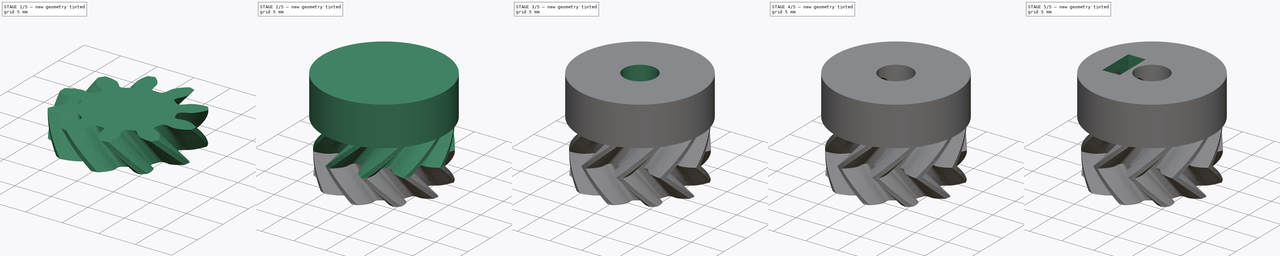
[diagram: build sequence overview — one tinted view per stage of 5, left to right]
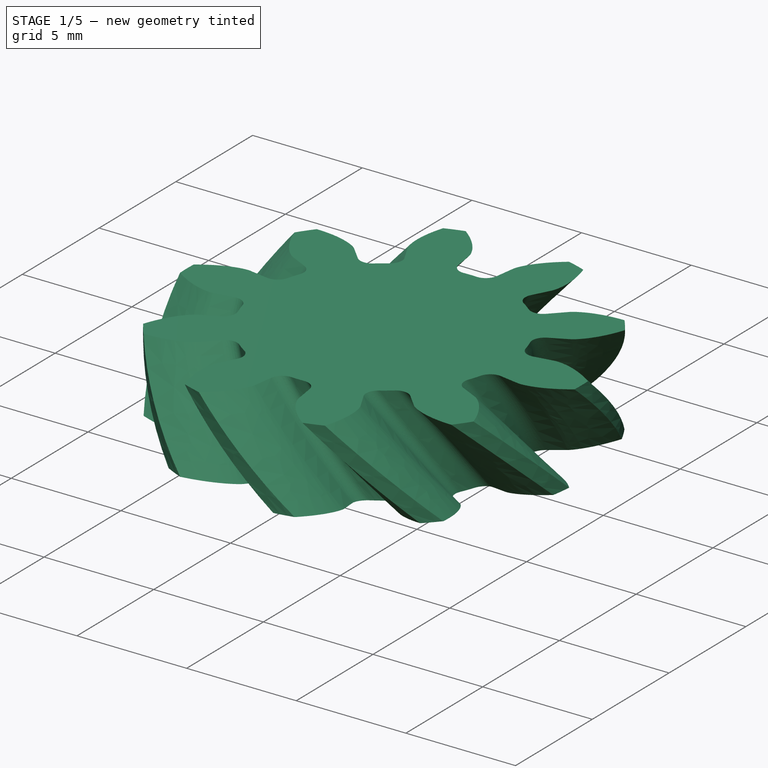
[diagram: stage 1 of 5 — iso view after this stage's code; geometry added in this stage tinted green]
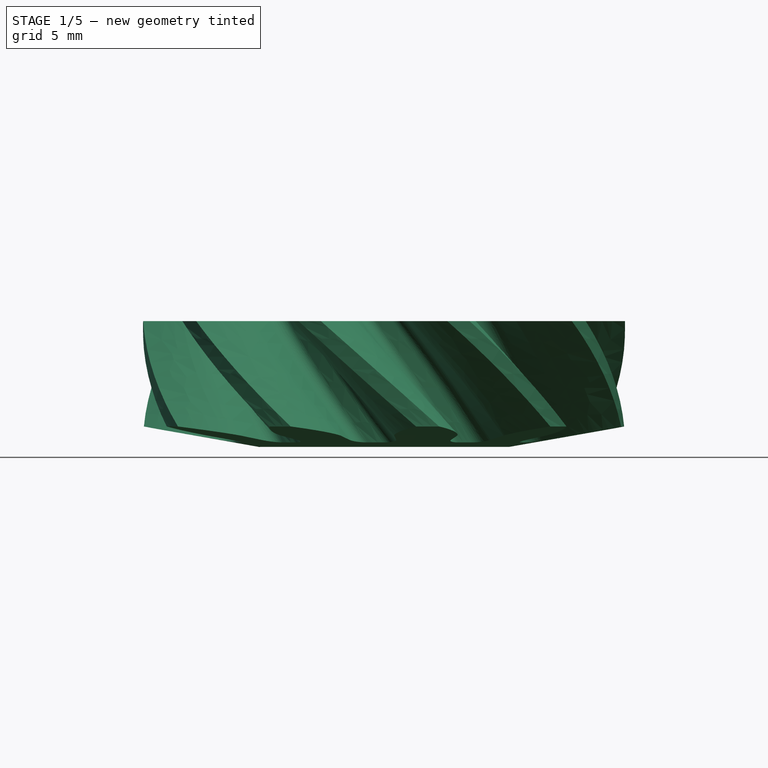
[diagram: stage 1 of 5 — front view after this stage's code; geometry added in this stage tinted green]
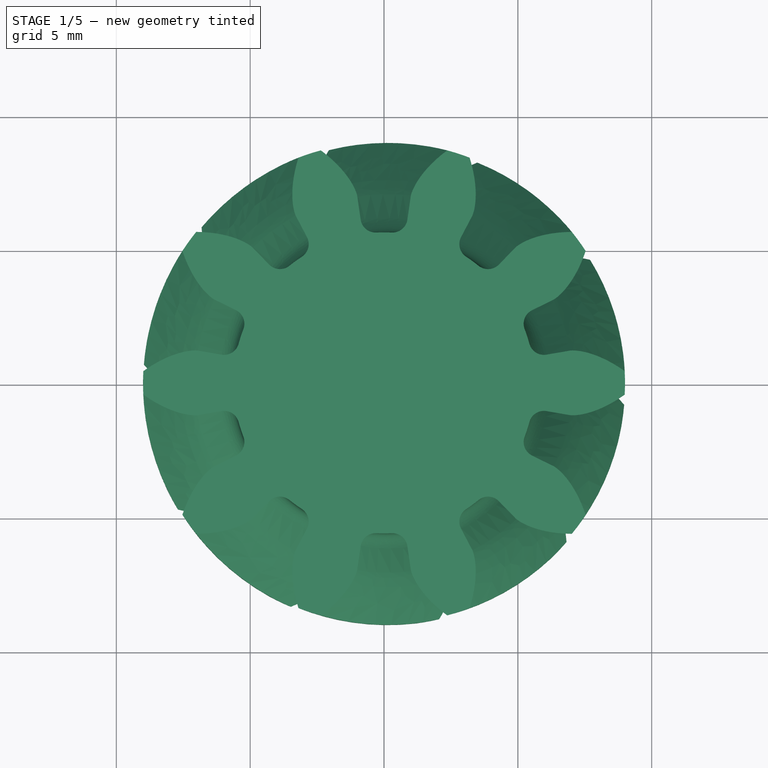
[diagram: stage 1 of 5 — top view after this stage's code; geometry added in this stage tinted green]
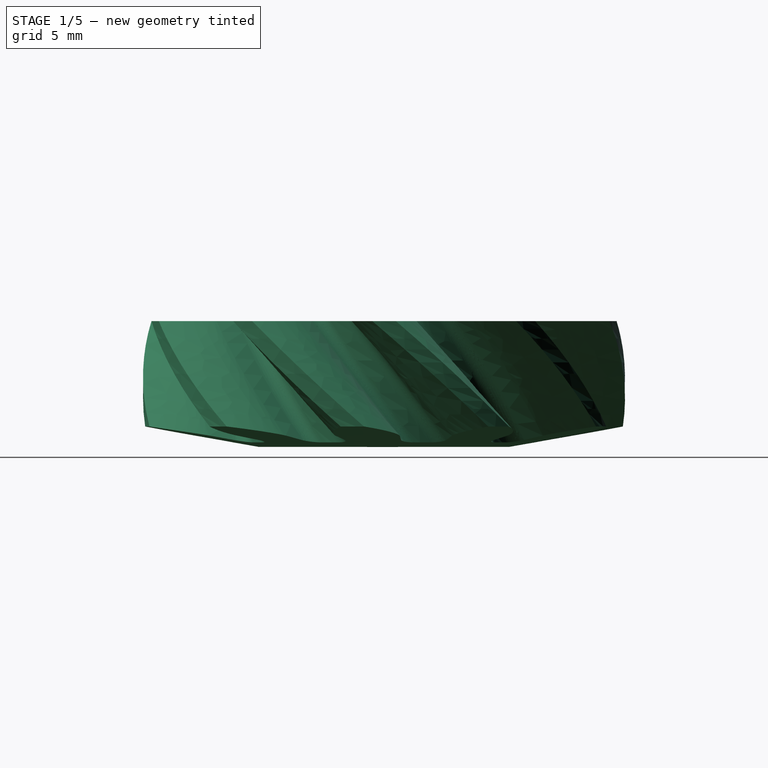
[diagram: stage 1 of 5 — right view after this stage's code; geometry added in this stage tinted green]
FCSTD DOCUMENT  (FreeCAD 0.16R6698 (Git))
Label: SmallGear
License: All rights reserved
LicenseURL: http://en.wikipedia.org/wiki/All_rights_reserved
objects: Part::Cut×4, App::DocumentObjectGroup×3, Part::Cylinder×3, Part::FeaturePython×3, Sketcher::SketchObject×2, Part::Feature×2, Part::Helix×2, Part::Sweep×2, Part::MultiFuse×2, Part::Part2DObjectPython×1, PartDesign::Revolution×1, Spreadsheet::Sheet×1, PartDesign::Pad×1
note: 25 computed .brp shape members not serialized (recipe doc carries the construction recipe); baked Part::Feature solids carry a one-line shape summary decoded from their .brp

FEATURE [Part::Part2DObjectPython] InvoluteGear001  label="GearProfile"  # Draft 2D object (typed FeaturePython)
  ExternalGear = true
  HighPrecision = true
  Modules = 1.5
  NumberOfTeeth = 10
  Placement = pos=(0,0,4.7) rot=(0,0,1;0rad)
  PressureAngle = 20
FEATURE [Sketcher::SketchObject] Sketch023  label="UpperCut"
  Placement = pos=(0,0,0) rot=(1,0,0;1.5708rad)
  sketch-geometry (4):
    g0: LineSegment StartX=10.8404 StartY=1.08593 StartZ=0 EndX=10.8404 EndY=-0.305037 EndZ=0
    g1: LineSegment StartX=2.95182 StartY=-0.305037 StartZ=0 EndX=10.8404 EndY=-0.305037 EndZ=0
    g2: GeomPoint [constr] X=4.68177 Y=0 Z=0
    g3: LineSegment StartX=2.95182 StartY=-0.305037 StartZ=0 EndX=10.8404 EndY=1.08593 EndZ=0
  constraints (9):
    c: Vertical(g0)
    c: Coincident(g0,g1)
    c: Horizontal(g1)
    c: DistanceX(g2) = 4.68177
    c: PointOnObject(g2,g-1)
    c: Coincident(g3,g1)
    c: Coincident(g3,g0)
    c: PointOnObject(g2,g3)
    c: Angle(g3) = 0.174533
FEATURE [PartDesign::Revolution] Revolution  label="UpperCut001"
  Angle = 360
  Axis = (0,0,1)
  Base = (0,0,0)
  Placement = pos=(0,0,0) rot=(1,0,0;1.5708rad)
  ReferenceAxis = -> Sketch023 [V_Axis]
  Reversed = true
  Sketch = -> Sketch023
FEATURE [Part::Feature] Compound002003001  label="OldDesign"
  shape: bbox 19 x 19 x 15.4 mm, 217 faces, 2 solids (baked)
FEATURE [App::DocumentObjectGroup] Group  label="Reference"
  Group = -> [Compound002003001]
FEATURE [Part::Helix] Helix002  label="HelixR"
  Angle = 0
  Height = 4.7
  LocalCoord = 0
  Pitch = 50
  Placement = pos=(0,0,4.7) rot=(0,0,1;0rad)
  Radius = 1
  Style = 1
FEATURE [Part::Helix] Helix001  label="HelixL"
  Angle = 0
  Height = 4.7
  LocalCoord = 1
  Pitch = 50
  Radius = 1
  Style = 1
FEATURE [Part::Sweep] Sweep  label="LTeeth"
  Frenet = true
  Sections = -> [InvoluteGear001]
  Solid = true
  Spine = -> Helix001
  Transition = 1
FEATURE [Part::Cut] Cut  label="UpperTeeth"
  Base = -> Sweep
  Tool = -> Revolution
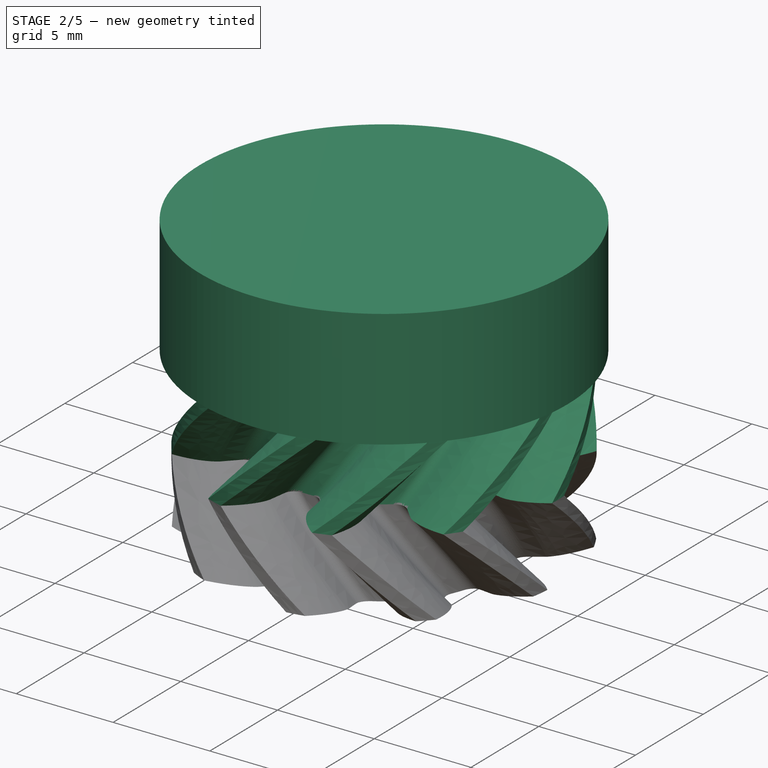
[diagram: stage 2 of 5 — iso view after this stage's code; geometry added in this stage tinted green]
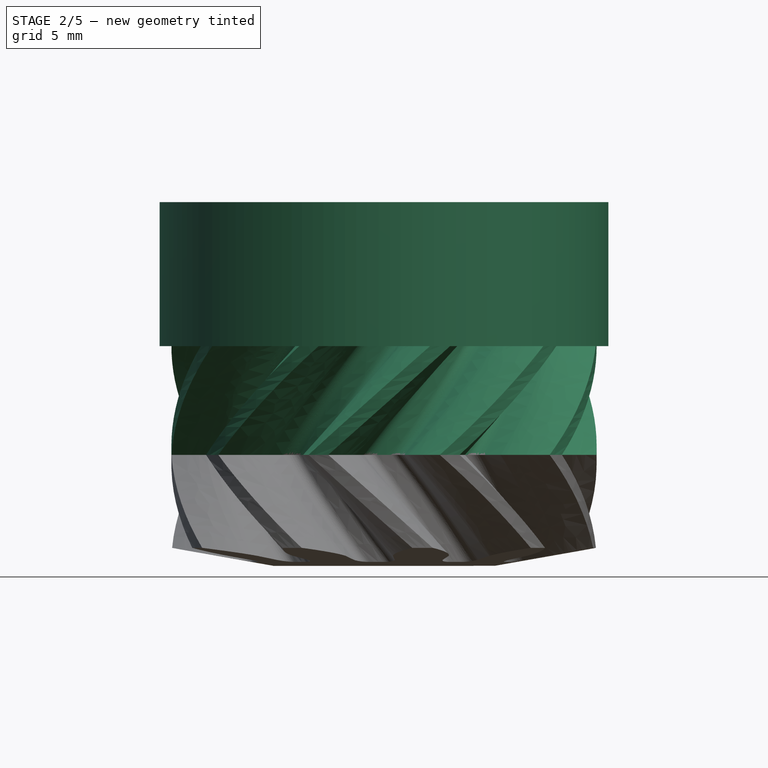
[diagram: stage 2 of 5 — front view after this stage's code; geometry added in this stage tinted green]
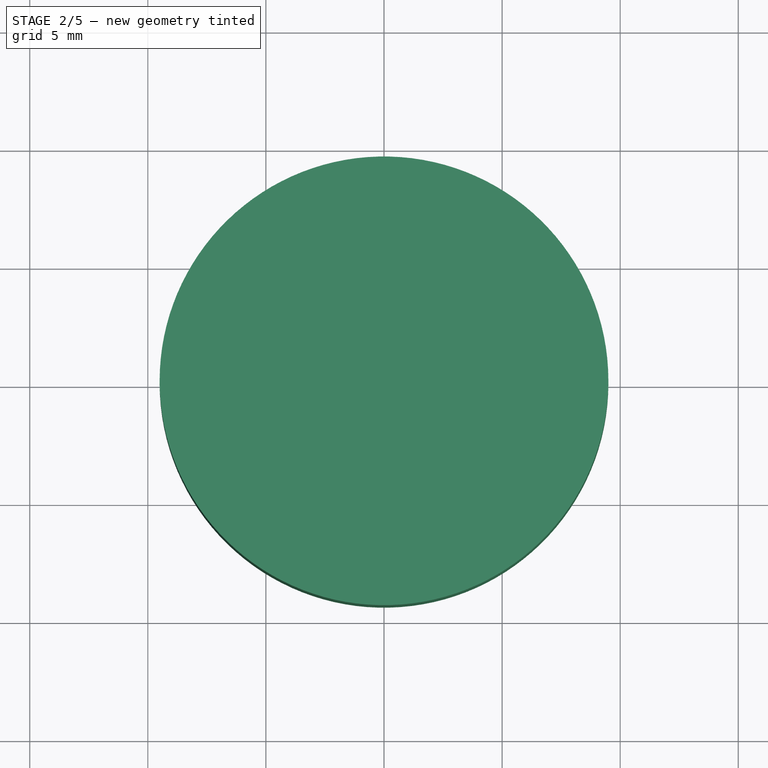
[diagram: stage 2 of 5 — top view after this stage's code; geometry added in this stage tinted green]
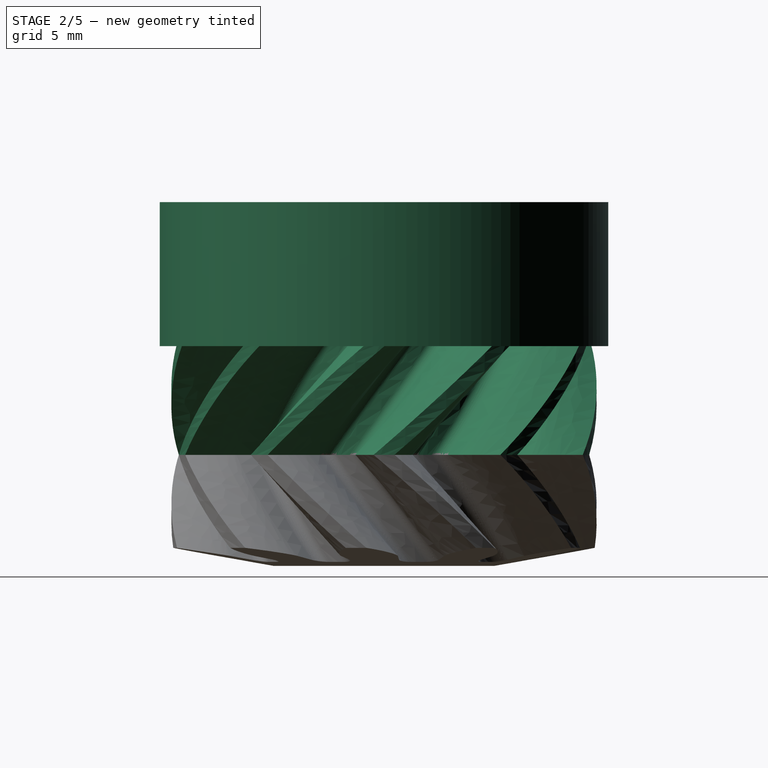
[diagram: stage 2 of 5 — right view after this stage's code; geometry added in this stage tinted green]
FEATURE [Part::Sweep] Sweep001  label="RTeeth"
  Frenet = true
  Sections = -> [InvoluteGear001]
  Solid = true
  Spine = -> Helix002
  Transition = 1
FEATURE [Part::Cylinder] Cylinder  label="Base"
  Angle = 360
  Height = 6.1
  Placement = pos=(0,0,9.3) rot=(0,0,1;0rad)
  Radius = 9.5
FEATURE [Part::MultiFuse] Fusion  label="Teeth"
  Shapes = -> [Cut,Sweep001]
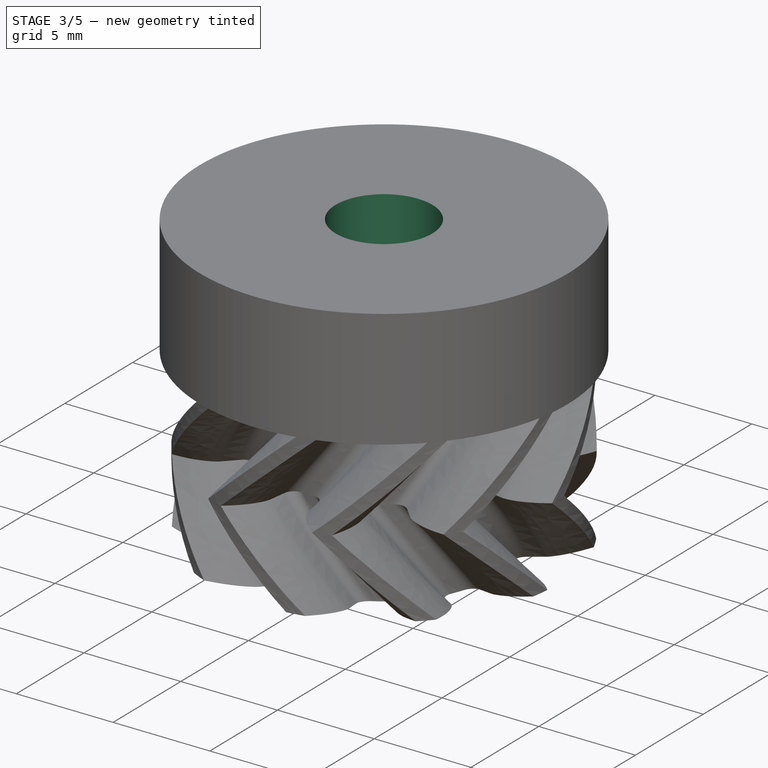
[diagram: stage 3 of 5 — iso view after this stage's code; geometry added in this stage tinted green]
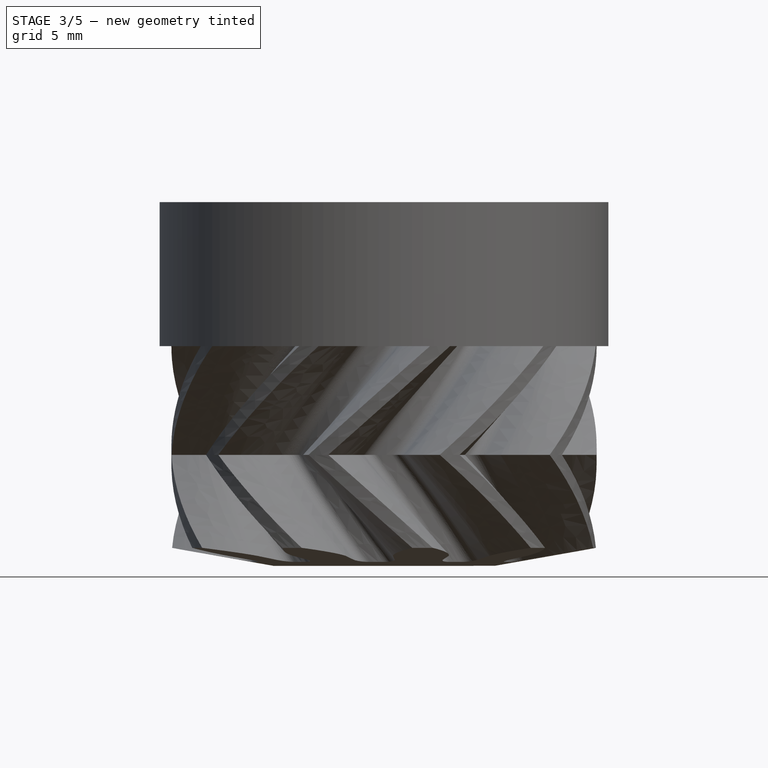
[diagram: stage 3 of 5 — front view after this stage's code; geometry added in this stage tinted green]
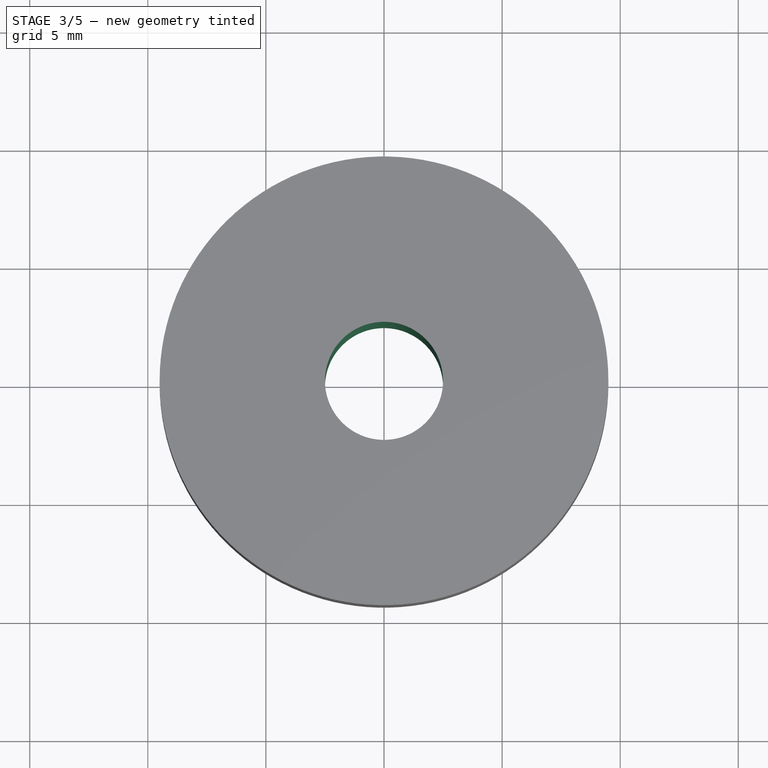
[diagram: stage 3 of 5 — top view after this stage's code; geometry added in this stage tinted green]
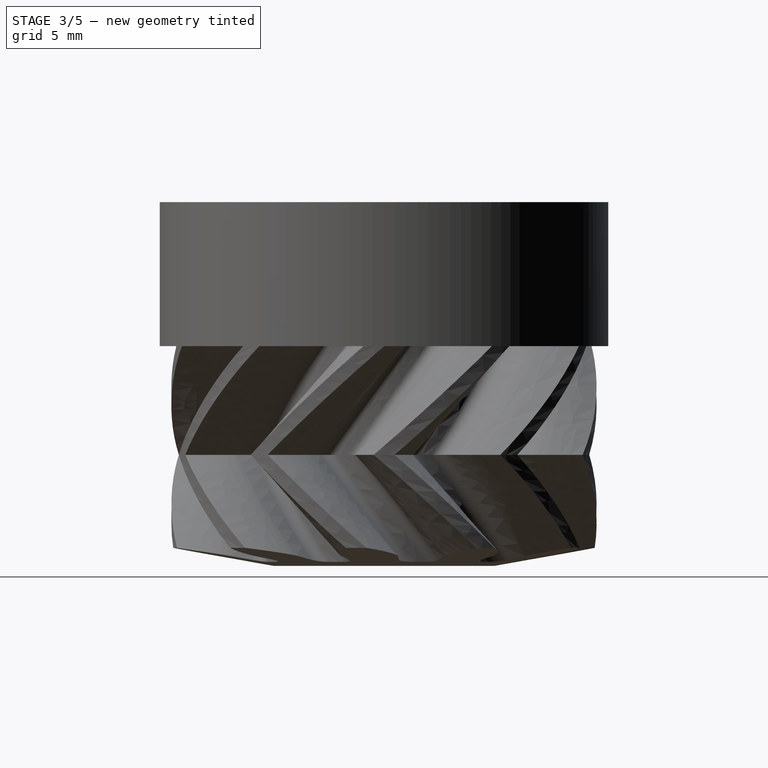
[diagram: stage 3 of 5 — right view after this stage's code; geometry added in this stage tinted green]
FEATURE [Part::Cylinder] Cylinder001  label="Axis"
  Angle = 360
  Height = 30
  Placement = pos=(0,0,-5) rot=(0,0,1;0rad)
  Radius = 2.5
  expr: Radius = 2.5 + Params.B2
FEATURE [Part::FeaturePython] Clone001  label="Clone of Axis"  # Draft clone (typed FeaturePython)
  Objects = -> [Cylinder001]
  Placement = pos=(0,0,-5) rot=(0,0,1;0rad)
  Scale = (1,1,1)
FEATURE [Part::MultiFuse] Fusion001  label="Base001"
  Shapes = -> [Fusion,Cylinder]
FEATURE [Part::Cut] Cut001  label="AxisCut"
  Base = -> Fusion001
  Tool = -> Clone001
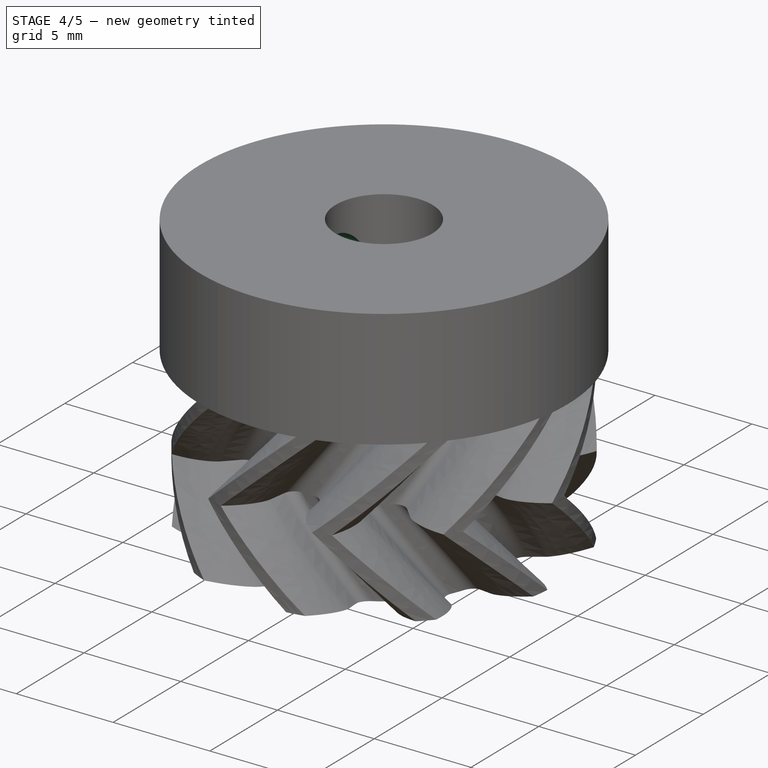
[diagram: stage 4 of 5 — iso view after this stage's code; geometry added in this stage tinted green]
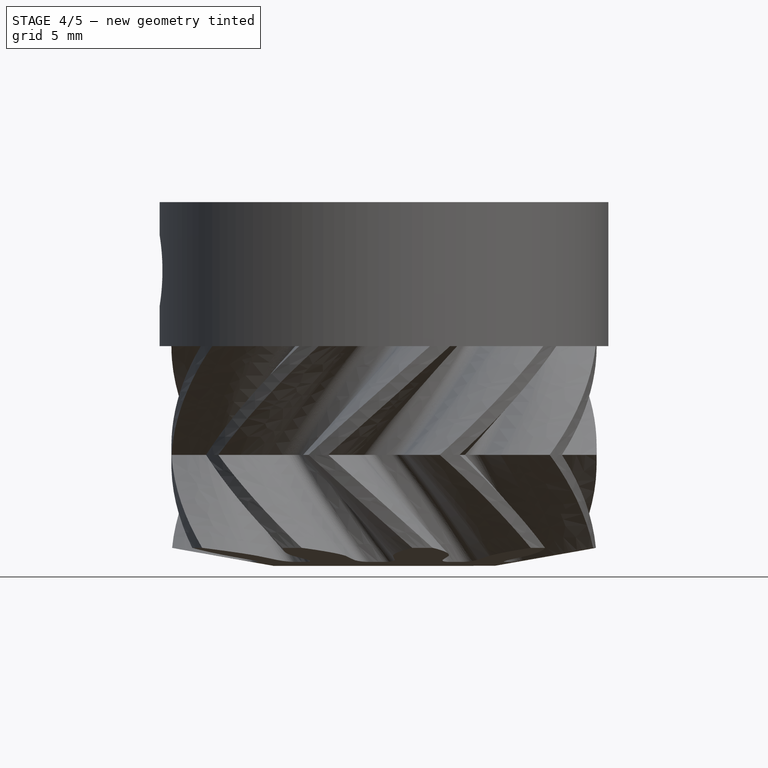
[diagram: stage 4 of 5 — front view after this stage's code; geometry added in this stage tinted green]
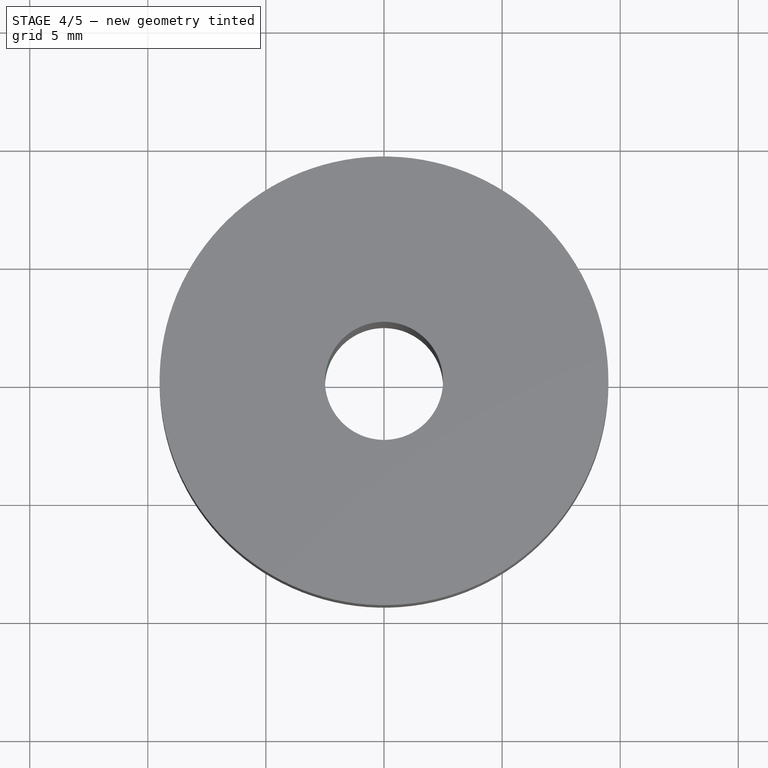
[diagram: stage 4 of 5 — top view after this stage's code; geometry added in this stage tinted green]
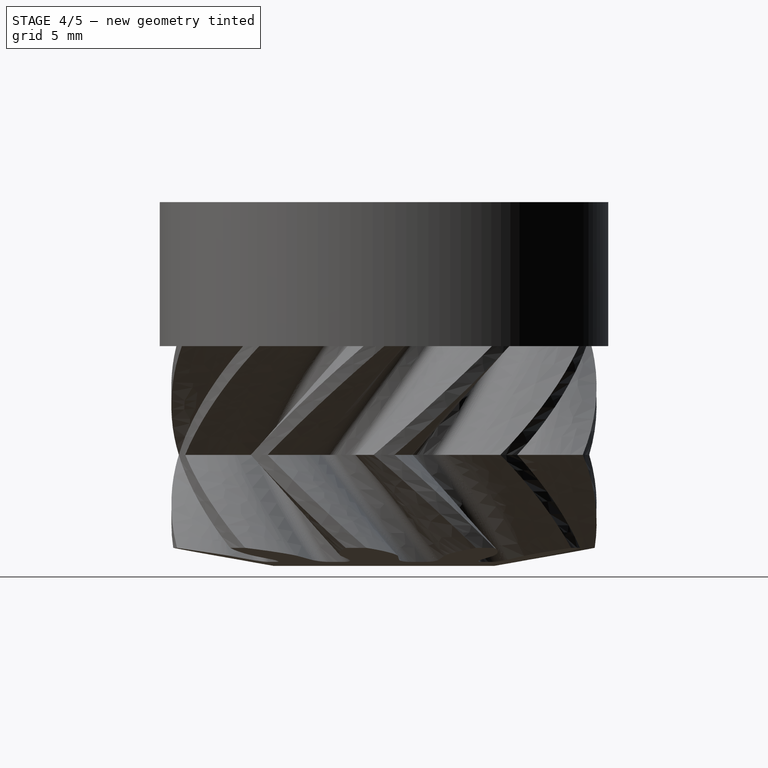
[diagram: stage 4 of 5 — right view after this stage's code; geometry added in this stage tinted green]
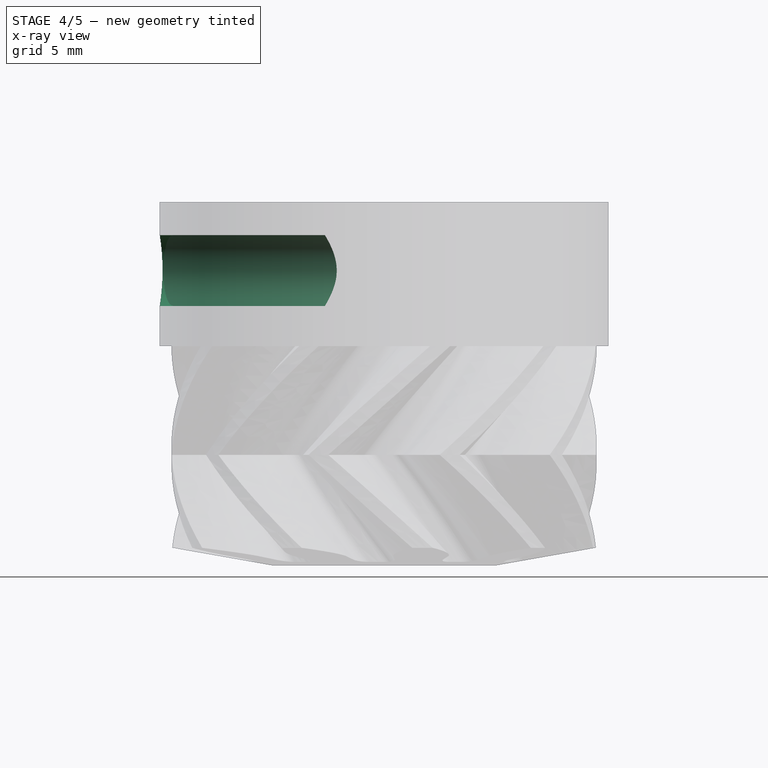
[diagram: stage 4 of 5 — x-ray composite at the front view; earlier geometry ghosted, this stage's added geometry solid]
FEATURE [Spreadsheet::Sheet] Spreadsheet  label="Params"
  cells = A1=Bolt Clearance; B1=0; A2=Axis Clearance; B2=0
FEATURE [Part::Cylinder] Cylinder002  label="M3Bolt"
  Angle = 360
  Height = 10
  Placement = pos=(-1,0,12.5) rot=(0,-1,0;1.5708rad)
  Radius = 1.5
  expr: Radius = 1.5 + Params.B1
FEATURE [Part::FeaturePython] Clone  label="Clone of M3Bolt"  # Draft clone (typed FeaturePython)
  Objects = -> [Cylinder002]
  Placement = pos=(-1,0,12.5) rot=(0,-1,0;1.5708rad)
  Scale = (1,1,1)
FEATURE [Part::Cut] Cut002  label="BoltCut"
  Base = -> Cut001
  Tool = -> Clone
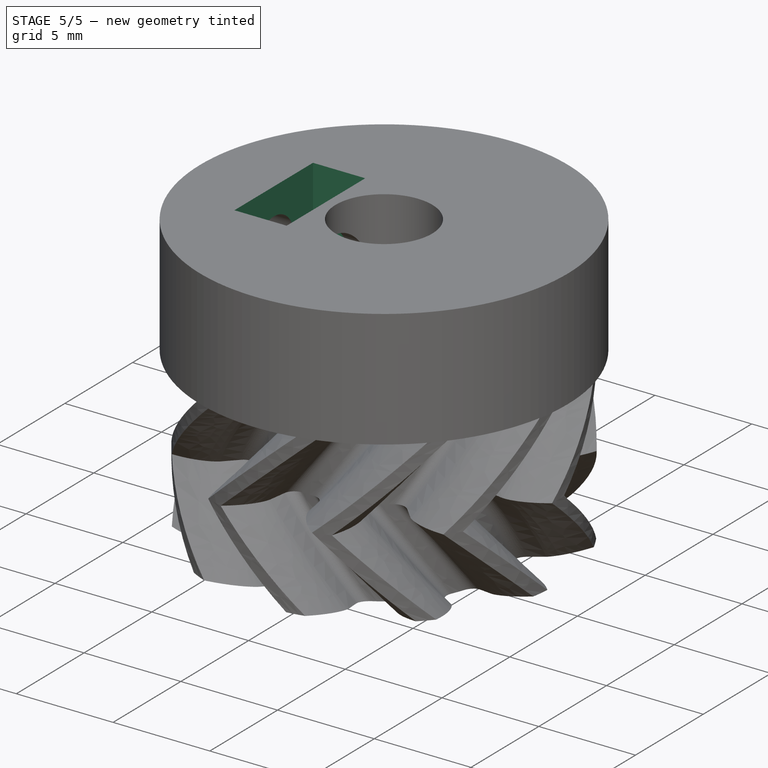
[diagram: stage 5 of 5 — iso view after this stage's code; geometry added in this stage tinted green]
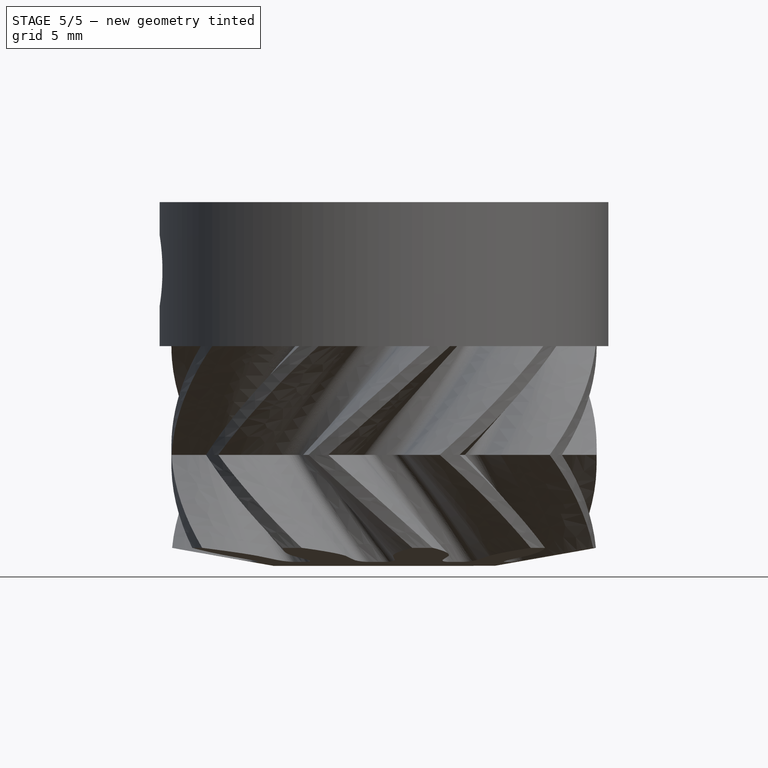
[diagram: stage 5 of 5 — front view after this stage's code; geometry added in this stage tinted green]
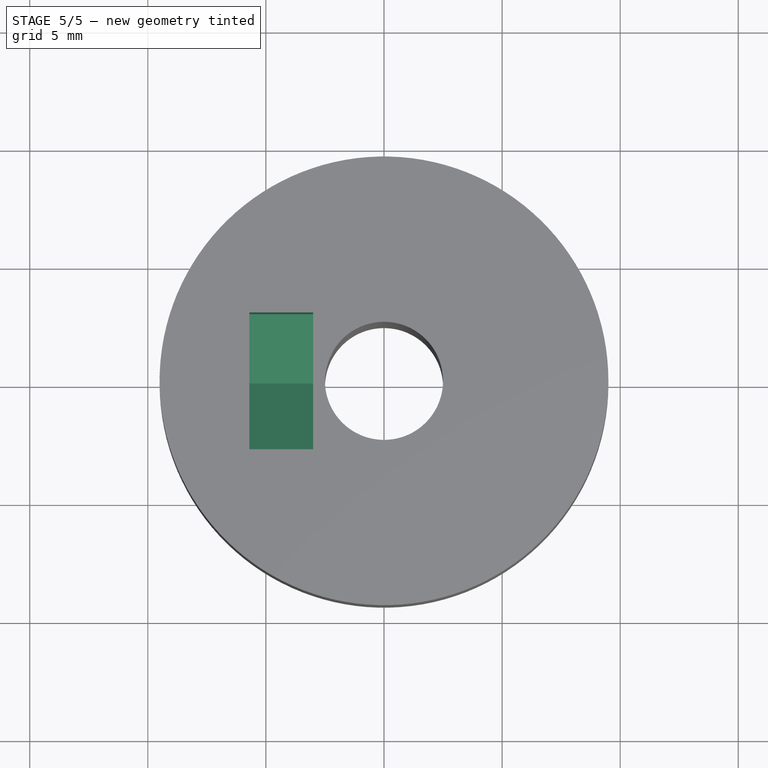
[diagram: stage 5 of 5 — top view after this stage's code; geometry added in this stage tinted green]
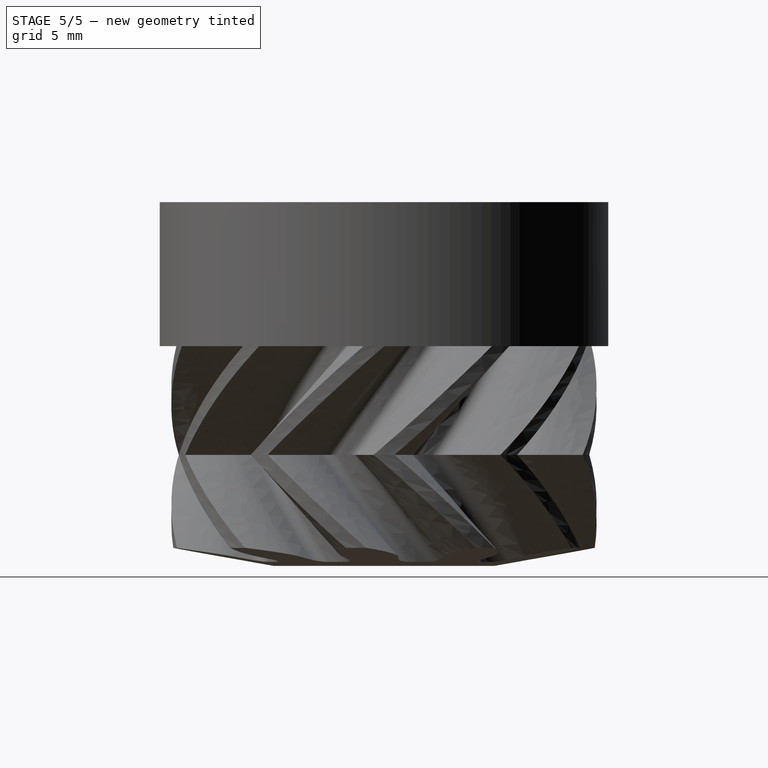
[diagram: stage 5 of 5 — right view after this stage's code; geometry added in this stage tinted green]
FEATURE [Sketcher::SketchObject] Sketch008  label="M3NutHousingSketch002"
  Placement = pos=(0,0,0) rot=(0,-1,0;1.5708rad)
  sketch-geometry (5):
    g0: LineSegment StartX=0 StartY=0 StartZ=0 EndX=1.67432 EndY=2.9 EndZ=0
    g1: LineSegment StartX=1.67432 StartY=2.9 StartZ=0 EndX=21.6743 EndY=2.9 EndZ=0
    g2: LineSegment StartX=21.6743 StartY=2.9 StartZ=0 EndX=21.6743 EndY=-2.9 EndZ=0
    g3: LineSegment StartX=21.6743 StartY=-2.9 StartZ=0 EndX=1.67432 EndY=-2.9 EndZ=0
    g4: LineSegment StartX=1.67432 StartY=-2.9 StartZ=0 EndX=0 EndY=0 EndZ=0
  constraints (14):
    c: Coincident(g-1,g0)
    c: Coincident(g0,g1)
    c: Horizontal(g1)
    c: Coincident(g1,g2)
    c: Vertical(g2)
    c: Coincident(g2,g3)
    c: Horizontal(g3)
    c: Coincident(g3,g4)
    c: Coincident(g4,g0)
    c: Equal(g3,g1)
    c: Equal(g4,g0)
    c: DistanceY(g2) = -5.8
    c: Angle(g-1,g0) = 1.0472
    c: DistanceX(g3) = -20
FEATURE [PartDesign::Pad] Pad007  label="M3NutHousingMaster"
  Length = 2.7
  Length2 = 100
  Placement = pos=(0,0,0) rot=(0,-1,0;1.5708rad)
  Sketch = -> Sketch008
  Type = 0
FEATURE [App::DocumentObjectGroup] Group001  label="Components_src"
  Group = -> [Cylinder001,Cylinder002,Helix002,Helix001,Pad007]
FEATURE [Part::FeaturePython] Clone003  label="Clone of M3NutHousingMaster"  # Draft clone (typed FeaturePython)
  Objects = -> [Pad007]
  Placement = pos=(-3,0,9) rot=(0,-1,0;1.5708rad)
  Scale = (1,1,1)
FEATURE [Part::Cut] Cut003  label="NutCut"
  Base = -> Cut002
  Tool = -> Clone003
FEATURE [Part::Feature] Cut003001  label="SmallGear"
  shape: bbox 19 x 19 x 15.4 mm, 214 faces (baked)
FEATURE [App::DocumentObjectGroup] Group002  label="src"
  Group = -> [Cut003]
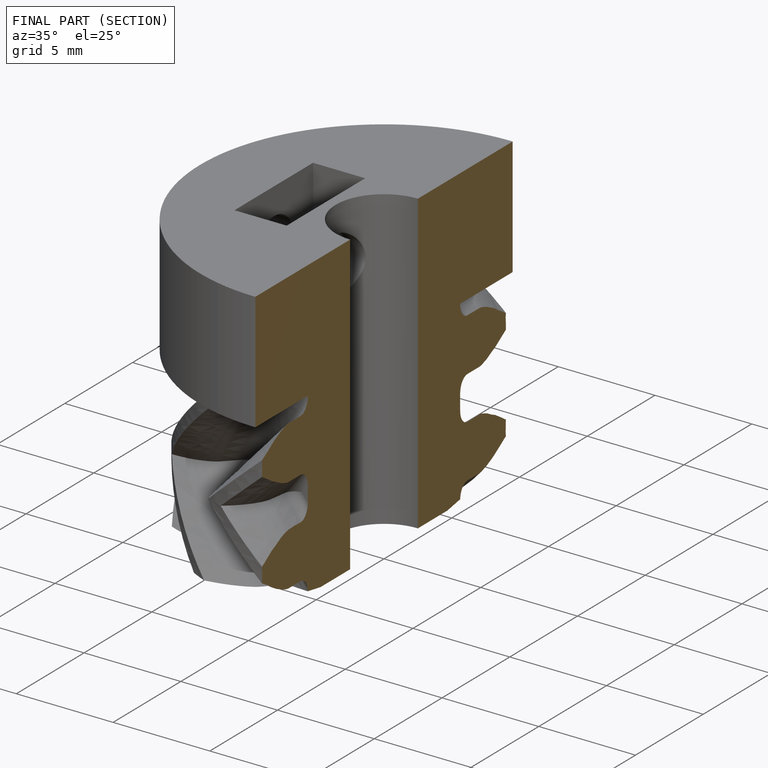
[diagram: finished part — half-section view (interior)]
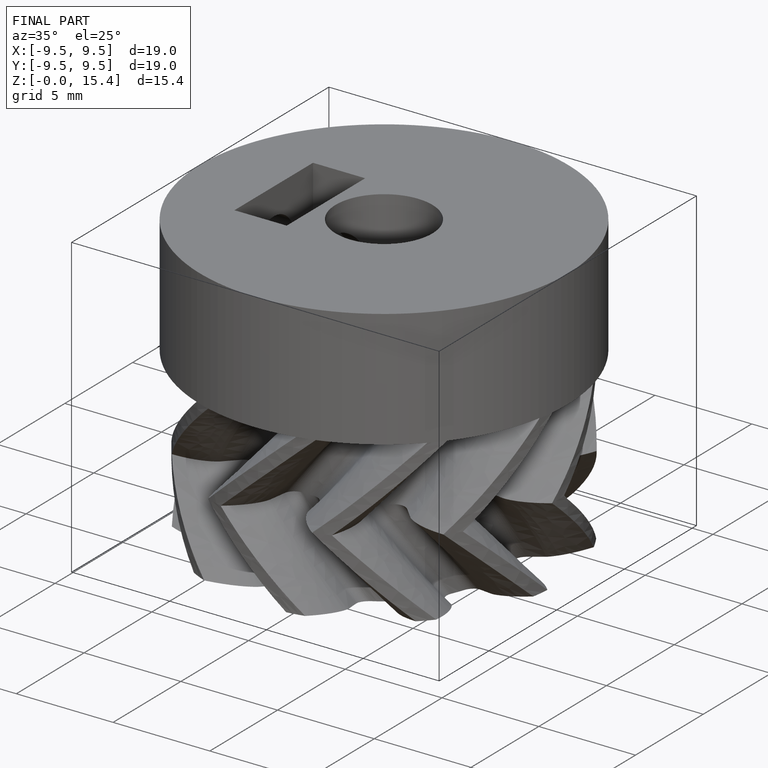
[diagram: finished part — iso view with bounding-box wireframe]
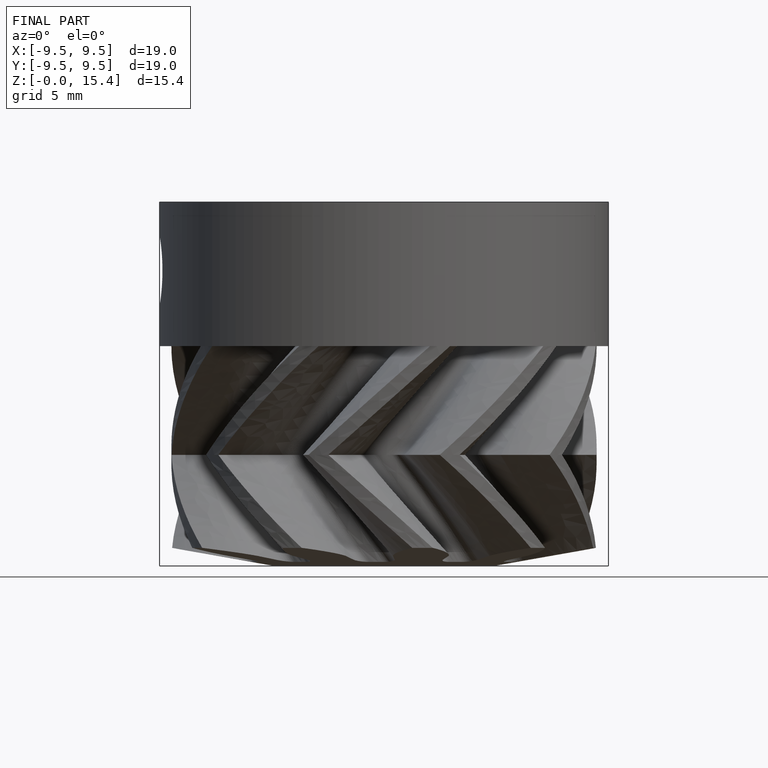
[diagram: finished part — front view with bounding-box wireframe]
